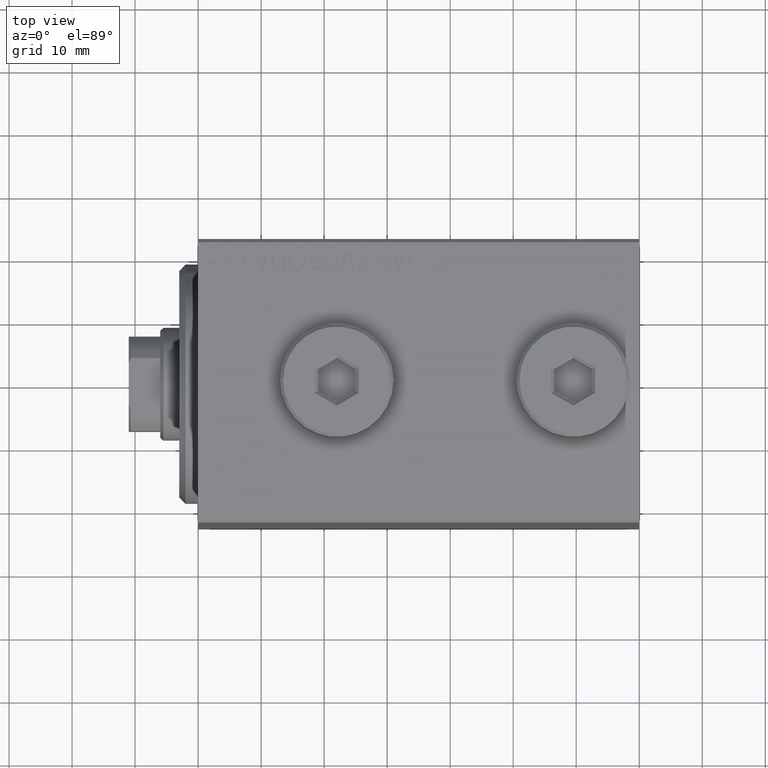
[diagram: clean part render]
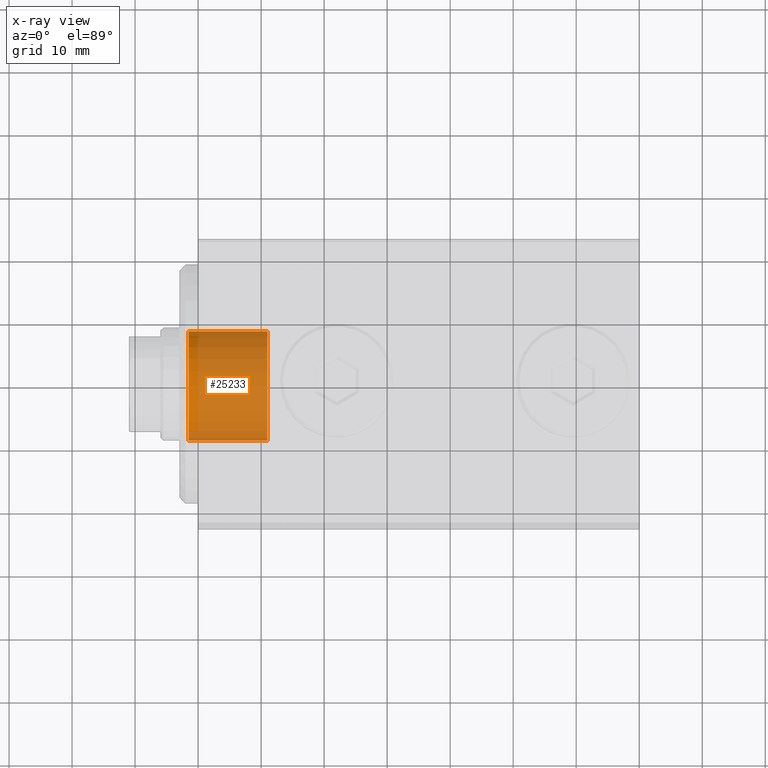
[diagram: x-ray — body ghosted, one internal face saturated and labeled with its STEP entity id]
A machine part, top view, then the same camera in x-ray: the body is ghosted and one INTERNAL B-rep face — a face not visible from any outside direction — is saturated and labeled: STEP entity #25233.
In plain terms, the highlighted cylindrical surface (partial cylindrical patch) has radius 9 mm, axis along (-1, 0, 0).
Its self-contained STEP definition (entity closure, byte-faithful):
#1187 = CARTESIAN_POINT ( 'NONE',  ( -11.00000000000000000, 1.102182119232617517E-15, 9.000000000000000000 ) ) ;
#2431 = VERTEX_POINT ( 'NONE', #38069 ) ;
#3266 = LINE ( 'NONE', #31588, #12602 ) ;
#3933 = DIRECTION ( 'NONE',  ( 1.000000000000000000, -0.000000000000000000, -0.000000000000000000 ) ) ;
#6457 = VECTOR ( 'NONE', #8288, 1000.000000000000000 ) ;
#8288 = DIRECTION ( 'NONE',  ( 1.000000000000000000, -0.000000000000000000, -0.000000000000000000 ) ) ;
#8776 = DIRECTION ( 'NONE',  ( 0.000000000000000000, 0.000000000000000000, -1.000000000000000000 ) ) ;
#12202 = CARTESIAN_POINT ( 'NONE',  ( -11.00000000000000000, 0.000000000000000000, 0.000000000000000000 ) ) ;
#12422 = DIRECTION ( 'NONE',  ( 1.000000000000000000, -0.000000000000000000, -0.000000000000000000 ) ) ;
#12588 = CARTESIAN_POINT ( 'NONE',  ( 1.499999999999999556, 0.000000000000000000, 0.000000000000000000 ) ) ;
#12602 = VECTOR ( 'NONE', #3933, 1000.000000000000000 ) ;
#18041 = CARTESIAN_POINT ( 'NONE',  ( 1.499999999999999556, 1.102182119232617517E-15, 9.000000000000000000 ) ) ;
#19185 = CIRCLE ( 'NONE', #25740, 9.000000000000000000 ) ;
#19279 = FACE_OUTER_BOUND ( 'NONE', #38143, .T. ) ;
#19830 = EDGE_CURVE ( 'NONE', #22682, #2431, #30780, .T. ) ;
#20157 = VERTEX_POINT ( 'NONE', #36889 ) ;
#21666 = DIRECTION ( 'NONE',  ( 1.000000000000000000, 0.000000000000000000, 0.000000000000000000 ) ) ;
#22131 = ORIENTED_EDGE ( 'NONE', *, *, #41304, .T. ) ;
#22637 = DIRECTION ( 'NONE',  ( 1.000000000000000000, 0.000000000000000000, 0.000000000000000000 ) ) ;
#22682 = VERTEX_POINT ( 'NONE', #41209 ) ;
#22689 = EDGE_CURVE ( 'NONE', #2431, #20157, #3266, .T. ) ;
#25233 = ADVANCED_FACE ( 'NONE', ( #19279 ), #43495, .F. ) ;
#25357 = ORIENTED_EDGE ( 'NONE', *, *, #38745, .T. ) ;
#25671 = AXIS2_PLACEMENT_3D ( 'NONE', #12202, #12422, #8776 ) ;
#25740 = AXIS2_PLACEMENT_3D ( 'NONE', #12588, #22637, #33595 ) ;
#30780 = CIRCLE ( 'NONE', #32940, 9.000000000000000000 ) ;
#31588 = CARTESIAN_POINT ( 'NONE',  ( -11.00000000000000000, 0.000000000000000000, -9.000000000000000000 ) ) ;
#32940 = AXIS2_PLACEMENT_3D ( 'NONE', #36483, #21666, #43122 ) ;
#33595 = DIRECTION ( 'NONE',  ( 0.000000000000000000, 0.000000000000000000, -1.000000000000000000 ) ) ;
#36483 = CARTESIAN_POINT ( 'NONE',  ( -11.00000000000000000, 0.000000000000000000, 0.000000000000000000 ) ) ;
#36889 = CARTESIAN_POINT ( 'NONE',  ( 1.499999999999999556, 0.000000000000000000, -9.000000000000000000 ) ) ;
#38069 = CARTESIAN_POINT ( 'NONE',  ( -11.00000000000000000, 0.000000000000000000, -9.000000000000000000 ) ) ;
#38143 = EDGE_LOOP ( 'NONE', ( #42714, #25357, #22131, #39837 ) ) ;
#38745 = EDGE_CURVE ( 'NONE', #22682, #41847, #39588, .T. ) ;
#39588 = LINE ( 'NONE', #1187, #6457 ) ;
#39837 = ORIENTED_EDGE ( 'NONE', *, *, #22689, .F. ) ;
#41209 = CARTESIAN_POINT ( 'NONE',  ( -11.00000000000000000, 1.102182119232617517E-15, 9.000000000000000000 ) ) ;
#41304 = EDGE_CURVE ( 'NONE', #41847, #20157, #19185, .T. ) ;
#41847 = VERTEX_POINT ( 'NONE', #18041 ) ;
#42714 = ORIENTED_EDGE ( 'NONE', *, *, #19830, .F. ) ;
#43122 = DIRECTION ( 'NONE',  ( 0.000000000000000000, 0.000000000000000000, -1.000000000000000000 ) ) ;
#43495 = CYLINDRICAL_SURFACE ( 'NONE', #25671, 9.000000000000000000 ) ;